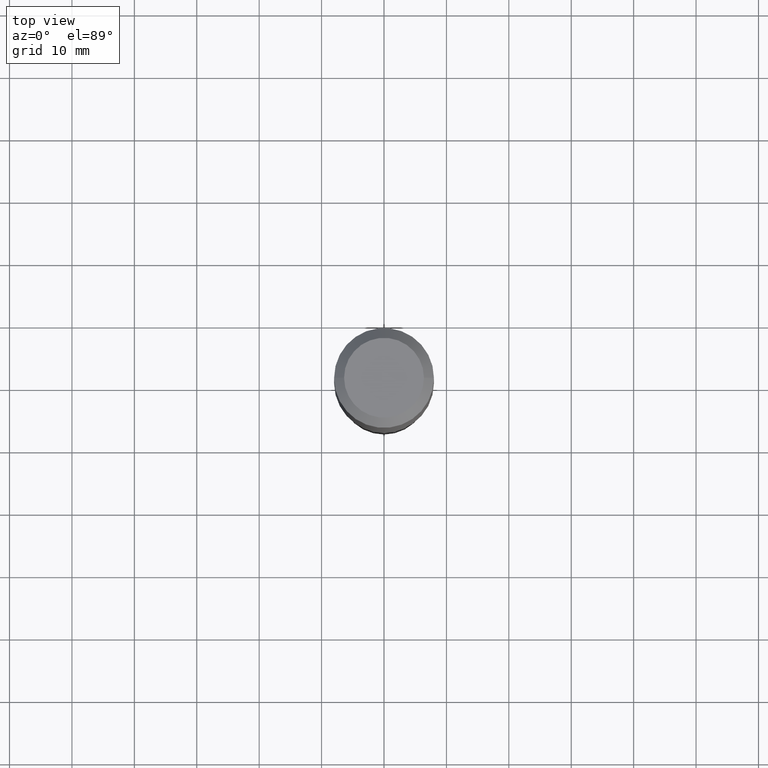
[diagram: clean part render]
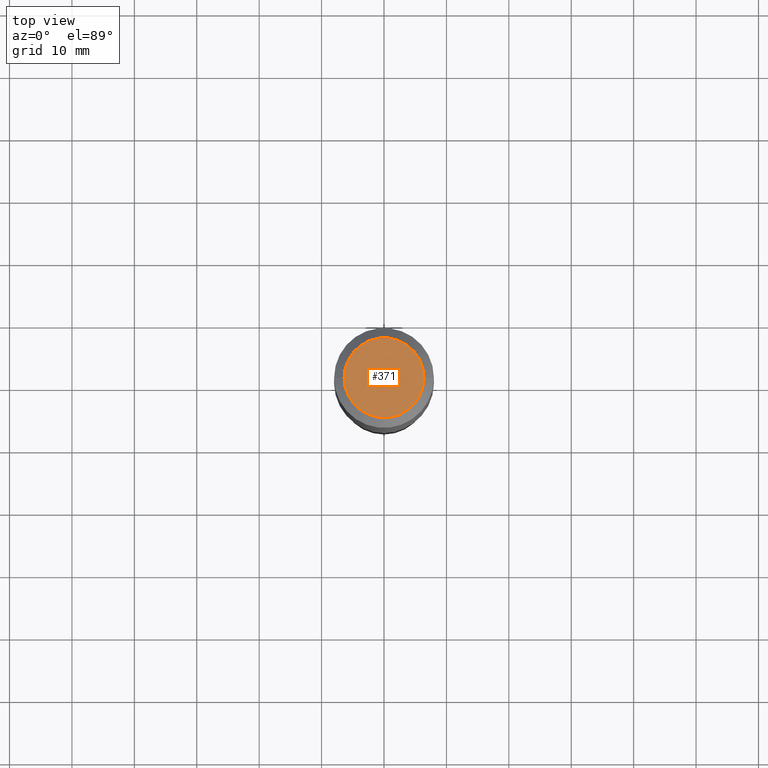
[diagram: same view with one face highlighted and labeled with its STEP entity id]
A machine part, top view. The second image highlights one B-rep face of the part: STEP entity #371.
In plain terms, the highlighted planar face has unit normal (0, -0, -1).
Its self-contained STEP definition (entity closure, byte-faithful):
#9 = DIRECTION ( 'NONE',  ( -1.000000000000000000, 6.982962677686265922E-15, -4.876176775795935793E-29 ) ) ;
#25 = AXIS2_PLACEMENT_3D ( 'NONE', #32, #185, #333 ) ;
#32 = CARTESIAN_POINT ( 'NONE',  ( -9.427742298522569579E-47, 1.346031739168368629E-32, 3.855188123715871501E-18 ) ) ;
#56 = CARTESIAN_POINT ( 'NONE',  ( -9.427742298522569579E-47, 1.346031739168368629E-32, 3.855188123715871501E-18 ) ) ;
#82 = EDGE_CURVE ( 'NONE', #152, #131, #93, .T. ) ;
#93 = CIRCLE ( 'NONE', #210, 0.2519600000000000173 ) ;
#114 = PLANE ( 'NONE',  #362 ) ;
#117 = CIRCLE ( 'NONE', #25, 0.2519600000000000173 ) ;
#128 = ORIENTED_EDGE ( 'NONE', *, *, #82, .T. ) ;
#131 = VERTEX_POINT ( 'NONE', #363 ) ;
#152 = VERTEX_POINT ( 'NONE', #326 ) ;
#168 = DIRECTION ( 'NONE',  ( 1.000000000000000000, -6.982962677686266711E-15, 4.876115136096691995E-29 ) ) ;
#185 = DIRECTION ( 'NONE',  ( -2.445468806185136597E-29, 3.491481338843145583E-15, 1.000000000000000000 ) ) ;
#194 = ORIENTED_EDGE ( 'NONE', *, *, #344, .T. ) ;
#210 = AXIS2_PLACEMENT_3D ( 'NONE', #56, #321, #168 ) ;
#228 = CARTESIAN_POINT ( 'NONE',  ( -4.713871149261284790E-47, 6.730158695841843144E-33, 1.927594061857935750E-18 ) ) ;
#229 = EDGE_LOOP ( 'NONE', ( #128, #194 ) ) ;
#321 = DIRECTION ( 'NONE',  ( -2.445468806185136597E-29, 3.491481338843145583E-15, 1.000000000000000000 ) ) ;
#326 = CARTESIAN_POINT ( 'NONE',  ( -0.2519600000000000173, 1.869391481036695286E-15, 3.855188123703182704E-18 ) ) ;
#333 = DIRECTION ( 'NONE',  ( 1.000000000000000000, -6.982962677686266711E-15, 4.876115136096691995E-29 ) ) ;
#341 = DIRECTION ( 'NONE',  ( 2.438088387897960049E-29, -3.491481338843145188E-15, -1.000000000000000000 ) ) ;
#344 = EDGE_CURVE ( 'NONE', #131, #152, #117, .T. ) ;
#362 = AXIS2_PLACEMENT_3D ( 'NONE', #228, #341, #9 ) ;
#363 = CARTESIAN_POINT ( 'NONE',  ( 0.2519600000000000173, -2.054606664725195058E-15, 3.855188123729206640E-18 ) ) ;
#371 = ADVANCED_FACE ( 'NONE', ( #449 ), #114, .F. ) ;
#449 = FACE_OUTER_BOUND ( 'NONE', #229, .T. ) ;